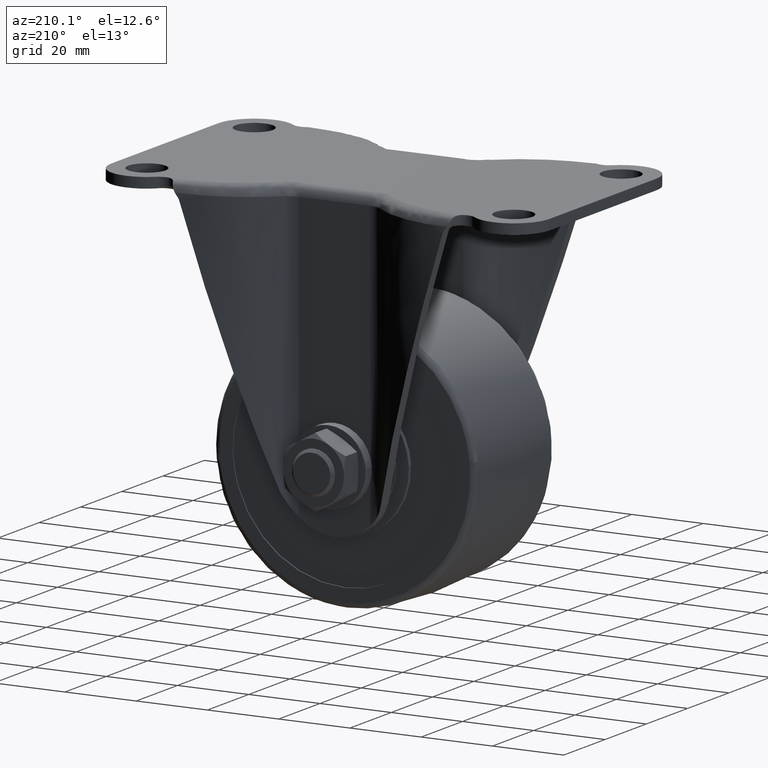
[diagram: clean part render]
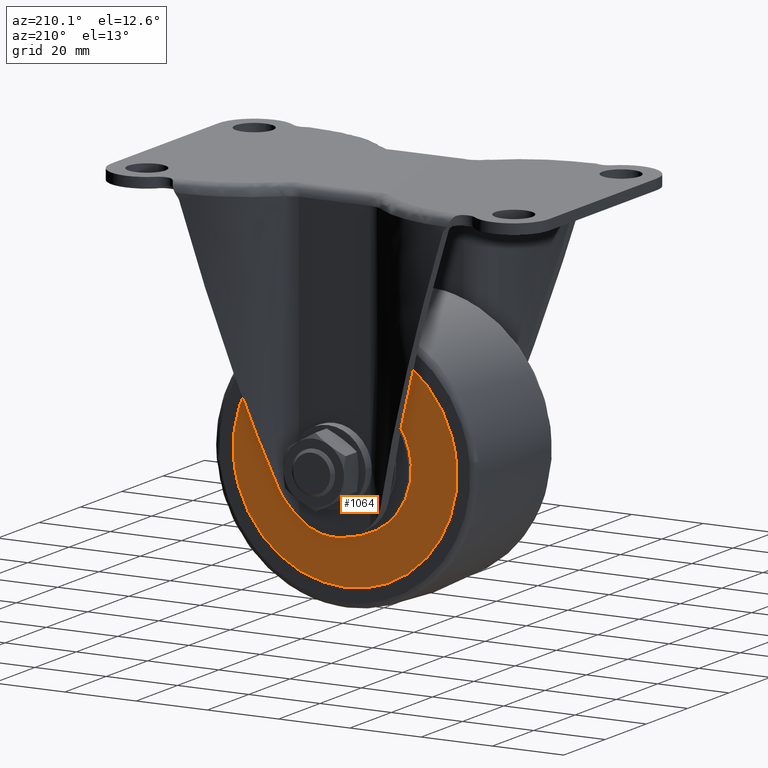
[diagram: same view with one face highlighted and labeled with its STEP entity id]
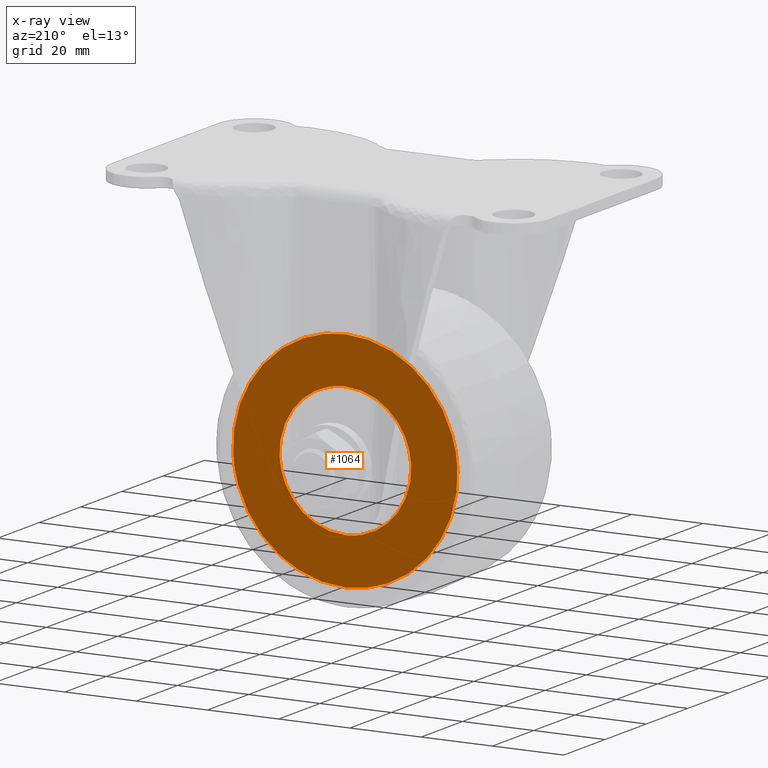
[diagram: x-ray of the same camera — body ghosted, the highlighted face saturated]
A machine part, auxiliary view. The second image highlights one B-rep face of the part: STEP entity #1064.
The next image is the same camera in x-ray: the body ghosted, the highlighted face saturated — about 0% of this face is hidden behind the body in this view.
In plain terms, the highlighted face is a freeform B-spline surface patch.
Its self-contained STEP definition (entity closure, byte-faithful):
#885=CARTESIAN_POINT('',(-18.465495111383241,18.699999999999999,-67.370623937300138));
#886=VERTEX_POINT('',#885);
#892=CARTESIAN_POINT('',(0.0,18.699999999999999,-50.0));
#893=VERTEX_POINT('',#892);
#894=CARTESIAN_POINT('',(0.0,18.699999999999999,-50.0));
#895=CARTESIAN_POINT('',(-17.403082933941359,18.700000000000014,-50.000000000000391));
#896=CARTESIAN_POINT('',(-18.465495111383238,18.699999999999999,-67.370623937300138));
#904=(BOUNDED_CURVE()B_SPLINE_CURVE(2,(#894,#895,#896),.UNSPECIFIED.,.F.,.U.)B_SPLINE_CURVE_WITH_KNOTS((3,3),(0.500000000000000,0.739333167056477),.UNSPECIFIED.)CURVE()GEOMETRIC_REPRESENTATION_ITEM()RATIONAL_B_SPLINE_CURVE((1.0,0.719603753328043,0.976072480630075))REPRESENTATION_ITEM(''));
#905=EDGE_CURVE('',#893,#886,#904,.T.);
#907=CARTESIAN_POINT('',(18.465495111383241,18.699999999999999,-69.629376062699862));
#908=VERTEX_POINT('',#907);
#909=CARTESIAN_POINT('',(18.465495111383241,18.699999999999999,-69.629376062699862));
#910=CARTESIAN_POINT('',(18.499999999987175,18.700000000000003,-69.065215130947664));
#911=CARTESIAN_POINT('',(18.499999999987381,18.700000000000010,-68.499999999999218));
#912=CARTESIAN_POINT('',(18.499999999993875,18.699999999999999,-49.999999999999616));
#913=CARTESIAN_POINT('',(0.0,18.699999999999999,-50.0));
#921=(BOUNDED_CURVE()B_SPLINE_CURVE(2,(#909,#910,#911,#912,#913),.UNSPECIFIED.,.F.,.U.)B_SPLINE_CURVE_WITH_KNOTS((3,2,3),(0.239333167056477,0.250000000000000,0.500000000000000),.UNSPECIFIED.)CURVE()GEOMETRIC_REPRESENTATION_ITEM()RATIONAL_B_SPLINE_CURVE((0.976072480630075,0.987503027858505,1.0,0.707106781186548,1.0))REPRESENTATION_ITEM(''));
#922=EDGE_CURVE('',#908,#893,#921,.T.);
#952=CARTESIAN_POINT('',(0.0,18.699999999999999,-87.000000000000014));
#953=VERTEX_POINT('',#952);
#954=CARTESIAN_POINT('',(0.0,18.699999999999999,-87.000000000000014));
#955=CARTESIAN_POINT('',(17.403082933941359,18.699999999999999,-86.999999999999616));
#956=CARTESIAN_POINT('',(18.465495111383238,18.699999999999999,-69.629376062699862));
#964=(BOUNDED_CURVE()B_SPLINE_CURVE(2,(#954,#955,#956),.UNSPECIFIED.,.F.,.U.)B_SPLINE_CURVE_WITH_KNOTS((3,3),(0.0,0.239333167056477),.UNSPECIFIED.)CURVE()GEOMETRIC_REPRESENTATION_ITEM()RATIONAL_B_SPLINE_CURVE((1.0,0.719603753328043,0.976072480630075))REPRESENTATION_ITEM(''));
#965=EDGE_CURVE('',#953,#908,#964,.T.);
#967=CARTESIAN_POINT('',(-18.465495111383238,18.699999999999999,-67.370623937300138));
#968=CARTESIAN_POINT('',(-18.499999999987182,18.699999999999999,-67.934784869052336));
#969=CARTESIAN_POINT('',(-18.499999999987381,18.700000000000010,-68.500000000000767));
#970=CARTESIAN_POINT('',(-18.499999999993875,18.699999999999999,-87.000000000000384));
#971=CARTESIAN_POINT('',(0.0,18.699999999999999,-87.000000000000014));
#979=(BOUNDED_CURVE()B_SPLINE_CURVE(2,(#967,#968,#969,#970,#971),.UNSPECIFIED.,.F.,.U.)B_SPLINE_CURVE_WITH_KNOTS((3,2,3),(0.739333167056477,0.750000000000000,1.0),.UNSPECIFIED.)CURVE()GEOMETRIC_REPRESENTATION_ITEM()RATIONAL_B_SPLINE_CURVE((0.976072480630075,0.987503027858505,1.0,0.707106781186548,1.0))REPRESENTATION_ITEM(''));
#980=EDGE_CURVE('',#886,#953,#979,.T.);
#987=CARTESIAN_POINT('',(-34.646074700239573,18.699999999999999,-103.146849877893800));
#988=CARTESIAN_POINT('',(-34.646074700239573,18.699999999999999,-33.853148432314562));
#989=CARTESIAN_POINT('',(34.646073573711782,18.699999999999999,-103.146849877893800));
#990=CARTESIAN_POINT('',(34.646073573711782,18.699999999999999,-33.853148432314562));
#991=B_SPLINE_SURFACE_WITH_KNOTS('',1,1,((#987,#989),(#988,#990)),.UNSPECIFIED.,.F.,.F.,.U.,(2,2),(2,2),(0.0,69.293701445579217),(0.0,69.292148273951341),.UNSPECIFIED.);
#992=CARTESIAN_POINT('',(-31.441246484213000,18.700000000000909,-66.576976464279923));
#993=VERTEX_POINT('',#992);
#994=CARTESIAN_POINT('',(0.0,18.699999999999999,-100.0));
#995=VERTEX_POINT('',#994);
#996=CARTESIAN_POINT('',(-31.441246484213011,18.700000000000905,-66.576976464279923));
#997=CARTESIAN_POINT('',(-31.499999999999531,18.700000000000891,-67.537590693562535));
#998=CARTESIAN_POINT('',(-31.499999999999531,18.700000000000880,-68.500000000000028));
#999=CARTESIAN_POINT('',(-31.499999999999780,18.700000000000426,-100.000000000000010));
#1000=CARTESIAN_POINT('',(0.0,18.699999999999999,-100.0));
#1008=(BOUNDED_CURVE()B_SPLINE_CURVE(2,(#996,#997,#998,#999,#1000),.UNSPECIFIED.,.F.,.U.)B_SPLINE_CURVE_WITH_KNOTS((3,2,3),(0.739332992203926,0.750000000000000,1.0),.UNSPECIFIED.)CURVE()GEOMETRIC_REPRESENTATION_ITEM()RATIONAL_B_SPLINE_CURVE((0.976072105887389,0.987502823005999,1.0,0.707106781186547,1.0))REPRESENTATION_ITEM(''));
#1009=EDGE_CURVE('',#993,#995,#1008,.T.);
#1010=ORIENTED_EDGE('',*,*,#1009,.F.);
#1011=CARTESIAN_POINT('',(0.0,18.699999999999999,-37.000000000000007));
#1012=VERTEX_POINT('',#1011);
#1013=CARTESIAN_POINT('',(0.0,18.699999999999999,-37.000000000000007));
#1014=CARTESIAN_POINT('',(-29.632246262647353,18.700000000000461,-37.000000000000021));
#1015=CARTESIAN_POINT('',(-31.441246484213011,18.700000000000905,-66.576976464279923));
#1023=(BOUNDED_CURVE()B_SPLINE_CURVE(2,(#1013,#1014,#1015),.UNSPECIFIED.,.F.,.U.)B_SPLINE_CURVE_WITH_KNOTS((3,3),(0.500000000000000,0.739332992203926),.UNSPECIFIED.)CURVE()GEOMETRIC_REPRESENTATION_ITEM()RATIONAL_B_SPLINE_CURVE((1.0,0.719603958180549,0.976072105887389))REPRESENTATION_ITEM(''));
#1024=EDGE_CURVE('',#1012,#993,#1023,.T.);
#1025=ORIENTED_EDGE('',*,*,#1024,.F.);
#1026=CARTESIAN_POINT('',(31.441246484213000,18.700000000000909,-70.423023535720063));
#1027=VERTEX_POINT('',#1026);
#1028=CARTESIAN_POINT('',(31.441246484213003,18.700000000000909,-70.423023535720063));
#1029=CARTESIAN_POINT('',(31.499999999999535,18.700000000000898,-69.462409306437451));
#1030=CARTESIAN_POINT('',(31.499999999999542,18.700000000000880,-68.499999999999986));
#1031=CARTESIAN_POINT('',(31.499999999999780,18.700000000000426,-37.000000000000007));
#1032=CARTESIAN_POINT('',(0.0,18.699999999999999,-37.000000000000007));
#1040=(BOUNDED_CURVE()B_SPLINE_CURVE(2,(#1028,#1029,#1030,#1031,#1032),.UNSPECIFIED.,.F.,.U.)B_SPLINE_CURVE_WITH_KNOTS((3,2,3),(0.239332992203926,0.250000000000000,0.500000000000000),.UNSPECIFIED.)CURVE()GEOMETRIC_REPRESENTATION_ITEM()RATIONAL_B_SPLINE_CURVE((0.976072105887390,0.987502823005999,1.0,0.707106781186547,1.0))REPRESENTATION_ITEM(''));
#1041=EDGE_CURVE('',#1027,#1012,#1040,.T.);
#1042=ORIENTED_EDGE('',*,*,#1041,.F.);
#1043=CARTESIAN_POINT('',(0.0,18.699999999999999,-100.0));
#1044=CARTESIAN_POINT('',(29.632246262647367,18.700000000000450,-99.999999999999972));
#1045=CARTESIAN_POINT('',(31.441246484213007,18.700000000000909,-70.423023535720063));
#1053=(BOUNDED_CURVE()B_SPLINE_CURVE(2,(#1043,#1044,#1045),.UNSPECIFIED.,.F.,.U.)B_SPLINE_CURVE_WITH_KNOTS((3,3),(0.0,0.239332992203926),.UNSPECIFIED.)CURVE()GEOMETRIC_REPRESENTATION_ITEM()RATIONAL_B_SPLINE_CURVE((1.0,0.719603958180548,0.976072105887389))REPRESENTATION_ITEM(''));
#1054=EDGE_CURVE('',#995,#1027,#1053,.T.);
#1055=ORIENTED_EDGE('',*,*,#1054,.F.);
#1056=EDGE_LOOP('',(#1010,#1025,#1042,#1055));
#1057=FACE_OUTER_BOUND('',#1056,.T.);
#1058=ORIENTED_EDGE('',*,*,#905,.T.);
#1059=ORIENTED_EDGE('',*,*,#980,.T.);
#1060=ORIENTED_EDGE('',*,*,#965,.T.);
#1061=ORIENTED_EDGE('',*,*,#922,.T.);
#1062=EDGE_LOOP('',(#1058,#1059,#1060,#1061));
#1063=FACE_BOUND('',#1062,.T.);
#1064=ADVANCED_FACE('',(#1057,#1063),#991,.T.);